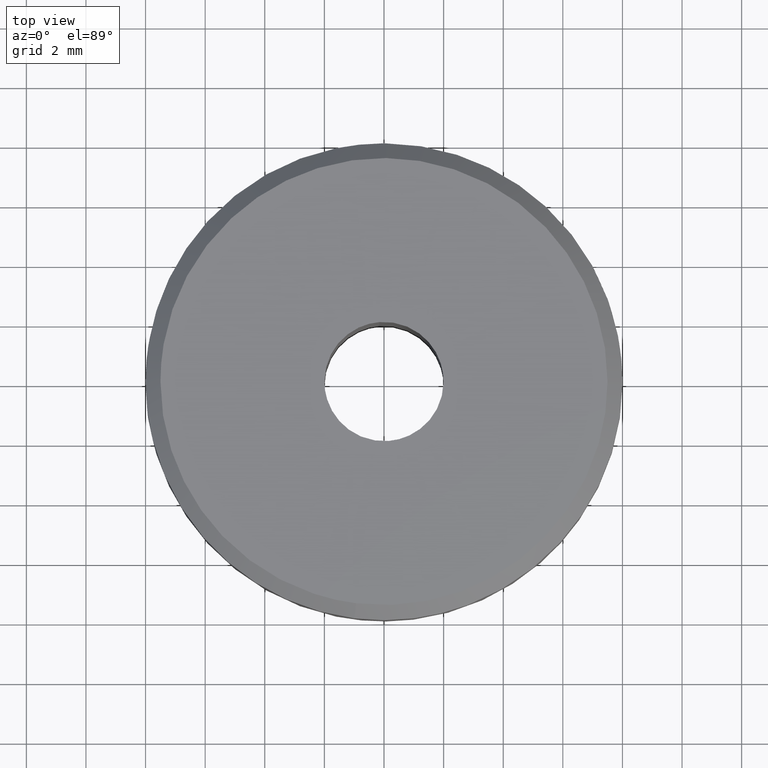
[diagram: clean part render]
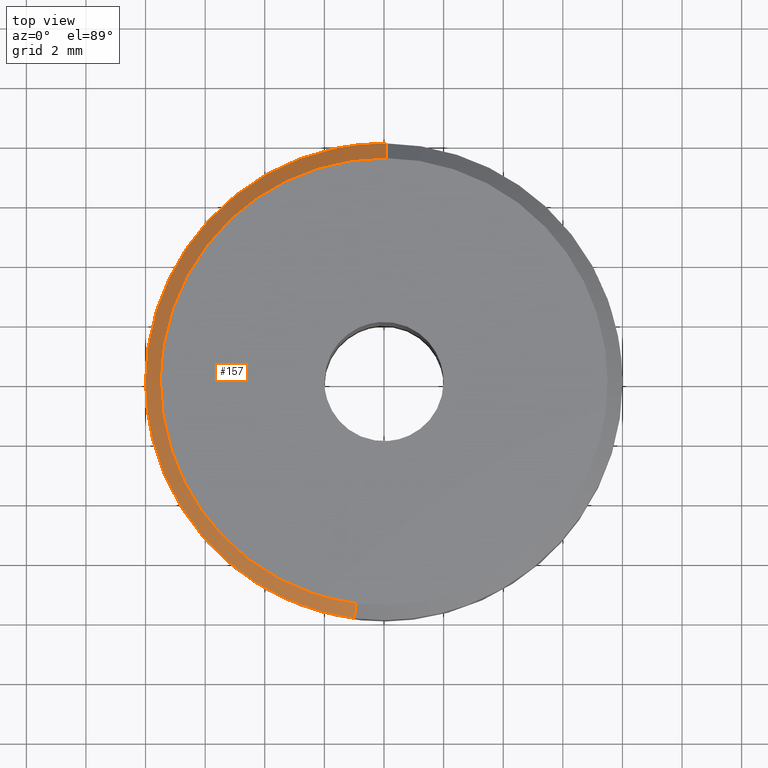
[diagram: same view with one face highlighted and labeled with its STEP entity id]
A machine part, top view. The second image highlights one B-rep face of the part: STEP entity #157.
In plain terms, the highlighted face is a freeform B-spline surface patch.
Its self-contained STEP definition (entity closure, byte-faithful):
#44=CARTESIAN_POINT('',(-0.929408415572725,-7.429593276018661,9.512500000000001));
#45=CARTESIAN_POINT('',(-7.545399568387005,-6.601962795272439,9.512500000000001));
#46=CARTESIAN_POINT('',(-7.487214898942932,0.065339934544074,9.512500000000001));
#47=CARTESIAN_POINT('',(-7.421874964398858,7.552554833486994,9.512500000000001));
#48=CARTESIAN_POINT('',(0.065339934544063,7.487214898942921,9.512500000000001));
#49=CARTESIAN_POINT('',(-0.994614406665293,-7.950843121468951,8.987187499999997));
#50=CARTESIAN_POINT('',(-8.074774220910383,-7.065147246810602,8.987187499999997));
#51=CARTESIAN_POINT('',(-8.012507396652641,0.069924092723064,8.987187499999997));
#52=CARTESIAN_POINT('',(-7.942583303929577,8.082431489375693,8.987187499999997));
#53=CARTESIAN_POINT('',(0.069924092723053,8.012507396652630,8.987187499999997));
#61=(BOUNDED_SURFACE()B_SPLINE_SURFACE(2,1,((#44,#49),(#45,#50),(#46,#51),(#47,#52),(#48,#53)),.UNSPECIFIED.,.F.,.F.,.U.)B_SPLINE_SURFACE_WITH_KNOTS((3,2,3),(2,2),(0.0,12.213977445729810,25.490039886740469),(0.0,1.0),.UNSPECIFIED.)GEOMETRIC_REPRESENTATION_ITEM()RATIONAL_B_SPLINE_SURFACE(((0.956886118190660,0.956886118190660),(0.730538238691624,0.730538238691624),(1.0,1.0),(0.707106781186548,0.707106781186548),(1.0,1.0)))REPRESENTATION_ITEM('')SURFACE());
#62=CARTESIAN_POINT('',(-0.993024016639548,-7.938129710604311,8.999999999999886));
#63=VERTEX_POINT('',#62);
#64=CARTESIAN_POINT('',(-8.000000000000011,0.0,9.0));
#65=VERTEX_POINT('',#64);
#66=CARTESIAN_POINT('',(-0.993024016639548,-7.938129710604311,8.999999999999886));
#67=CARTESIAN_POINT('',(-8.000000000000011,-7.061588801200236,9.0));
#68=CARTESIAN_POINT('',(-8.000000000000011,0.0,9.0));
#76=(BOUNDED_CURVE()B_SPLINE_CURVE(2,(#66,#67,#68),.UNSPECIFIED.,.F.,.U.)B_SPLINE_CURVE_WITH_KNOTS((3,3),(0.771473928970739,1.0),.UNSPECIFIED.)CURVE()GEOMETRIC_REPRESENTATION_ITEM()RATIONAL_B_SPLINE_CURVE((0.954005430274645,0.732265053893792,1.0))REPRESENTATION_ITEM(''));
#77=EDGE_CURVE('',#63,#65,#76,.T.);
#78=ORIENTED_EDGE('',*,*,#77,.F.);
#79=CARTESIAN_POINT('',(-0.930960015612381,-7.441996603691548,9.499999999998270));
#80=VERTEX_POINT('',#79);
#81=CARTESIAN_POINT('',(-0.930960015612381,-7.441996603691548,9.499999999998270));
#82=CARTESIAN_POINT('',(-0.993024016639548,-7.938129710604311,8.999999999999886));
#83=QUASI_UNIFORM_CURVE('',1,(#81,#82),.UNSPECIFIED.,.F.,.U.);
#84=EDGE_CURVE('',#80,#63,#83,.T.);
#85=ORIENTED_EDGE('',*,*,#84,.F.);
#86=CARTESIAN_POINT('',(-7.500000000000010,0.0,9.500000000000000));
#87=VERTEX_POINT('',#86);
#88=CARTESIAN_POINT('',(-7.500000000000010,0.0,9.500000000000000));
#89=CARTESIAN_POINT('',(-7.500000000000008,-6.620239501102615,9.499999999999998));
#90=CARTESIAN_POINT('',(-0.930960015612380,-7.441996603691548,9.499999999998270));
#98=(BOUNDED_CURVE()B_SPLINE_CURVE(2,(#88,#89,#90),.UNSPECIFIED.,.F.,.U.)B_SPLINE_CURVE_WITH_KNOTS((3,3),(0.500000000000000,0.728526071028690),.UNSPECIFIED.)CURVE()GEOMETRIC_REPRESENTATION_ITEM()RATIONAL_B_SPLINE_CURVE((1.0,0.732265053894462,0.954005430273536))REPRESENTATION_ITEM(''));
#99=EDGE_CURVE('',#87,#80,#98,.T.);
#100=ORIENTED_EDGE('',*,*,#99,.F.);
#101=CARTESIAN_POINT('',(0.065449016252098,7.499714422983092,9.499999999998039));
#102=VERTEX_POINT('',#101);
#103=CARTESIAN_POINT('',(0.065449016252098,7.499714422983092,9.499999999998039));
#104=CARTESIAN_POINT('',(0.032725131169539,7.500000000000001,9.500000000000000));
#105=CARTESIAN_POINT('',(-1.065814E-014,7.500000000000000,9.500000000000000));
#106=CARTESIAN_POINT('',(-7.500000000000009,7.500000000000000,9.500000000000000));
#107=CARTESIAN_POINT('',(-7.500000000000010,0.0,9.500000000000000));
#115=(BOUNDED_CURVE()B_SPLINE_CURVE(2,(#103,#104,#105,#106,#107),.UNSPECIFIED.,.F.,.U.)B_SPLINE_CURVE_WITH_KNOTS((3,2,3),(0.248460105664342,0.250000000000000,0.500000000000000),.UNSPECIFIED.)CURVE()GEOMETRIC_REPRESENTATION_ITEM()RATIONAL_B_SPLINE_CURVE((0.996414028098853,0.998195901565586,1.0,0.707106781186547,1.0))REPRESENTATION_ITEM(''));
#116=EDGE_CURVE('',#102,#87,#115,.T.);
#117=ORIENTED_EDGE('',*,*,#116,.F.);
#118=CARTESIAN_POINT('',(0.069812284010404,7.999695384516350,8.999999999996813));
#119=VERTEX_POINT('',#118);
#120=CARTESIAN_POINT('',(0.065449016252098,7.499714422983092,9.499999999998039));
#121=CARTESIAN_POINT('',(0.069812284010404,7.999695384516350,8.999999999996813));
#122=QUASI_UNIFORM_CURVE('',1,(#120,#121),.UNSPECIFIED.,.F.,.U.);
#123=EDGE_CURVE('',#102,#119,#122,.T.);
#124=ORIENTED_EDGE('',*,*,#123,.T.);
#125=CARTESIAN_POINT('',(-0.069807241200332,7.999695428517923,9.000000000000023));
#126=VERTEX_POINT('',#125);
#127=CARTESIAN_POINT('',(-0.069807241200332,7.999695428517923,9.000000000000023));
#128=CARTESIAN_POINT('',(-0.034904285028288,8.0,9.0));
#129=CARTESIAN_POINT('',(-1.065814E-014,8.0,9.0));
#130=CARTESIAN_POINT('',(0.034906806589004,8.0,8.999999999999998));
#131=CARTESIAN_POINT('',(0.069812284010404,7.999695384516350,8.999999999996813));
#139=(BOUNDED_CURVE()B_SPLINE_CURVE(2,(#127,#128,#129,#130,#131),.UNSPECIFIED.,.F.,.U.)B_SPLINE_CURVE_WITH_KNOTS((3,2,3),(0.248460216700562,0.250000000000000,0.251539894336018),.UNSPECIFIED.)CURVE()GEOMETRIC_REPRESENTATION_ITEM()RATIONAL_B_SPLINE_CURVE((0.996414285067891,0.998196031652609,1.0,0.998195901565165,0.996414028098021))REPRESENTATION_ITEM(''));
#140=EDGE_CURVE('',#126,#119,#139,.T.);
#141=ORIENTED_EDGE('',*,*,#140,.F.);
#142=CARTESIAN_POINT('',(-8.000000000000011,0.0,9.0));
#143=CARTESIAN_POINT('',(-8.000000000000011,7.930494684113032,9.0));
#144=CARTESIAN_POINT('',(-0.069807241200332,7.999695428517923,9.000000000000023));
#152=(BOUNDED_CURVE()B_SPLINE_CURVE(2,(#142,#143,#144),.UNSPECIFIED.,.F.,.U.)B_SPLINE_CURVE_WITH_KNOTS((3,3),(0.0,0.248460216700562),.UNSPECIFIED.)CURVE()GEOMETRIC_REPRESENTATION_ITEM()RATIONAL_B_SPLINE_CURVE((1.0,0.708910749533938,0.996414285067891))REPRESENTATION_ITEM(''));
#153=EDGE_CURVE('',#65,#126,#152,.T.);
#154=ORIENTED_EDGE('',*,*,#153,.F.);
#155=EDGE_LOOP('',(#78,#85,#100,#117,#124,#141,#154));
#156=FACE_OUTER_BOUND('',#155,.T.);
#157=ADVANCED_FACE('',(#156),#61,.T.);